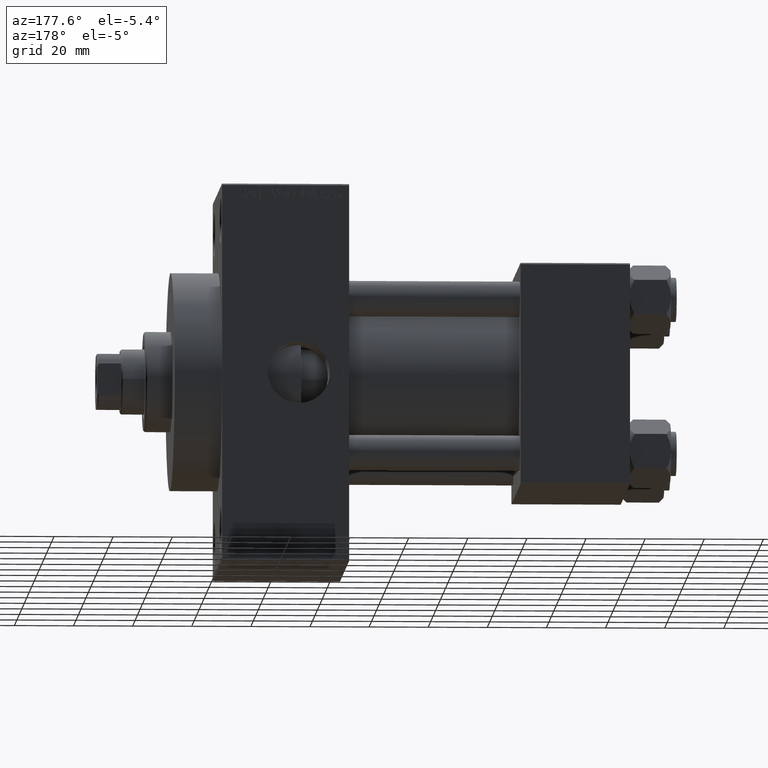
[diagram: clean part render]
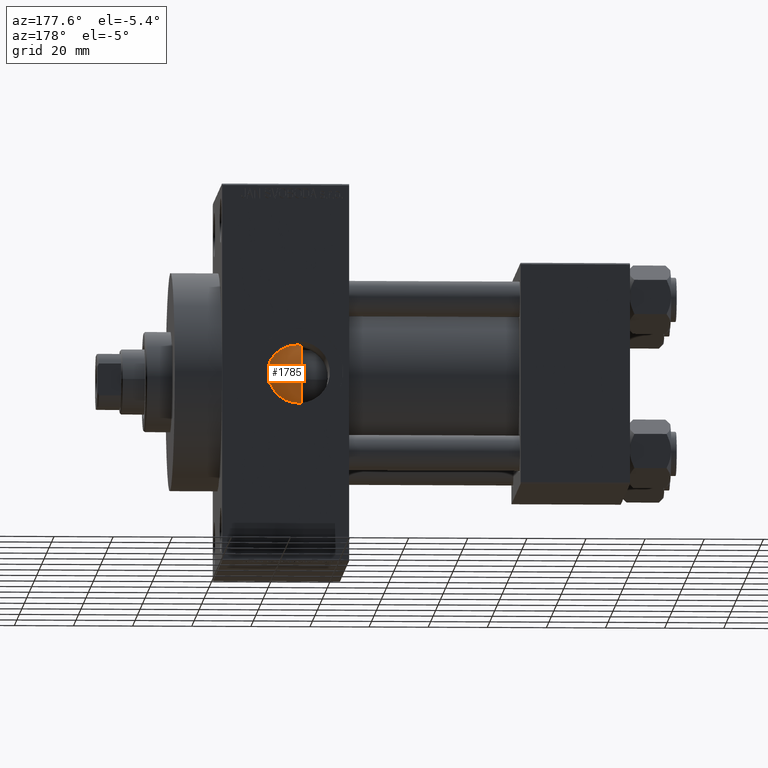
[diagram: same view with one face highlighted and labeled with its STEP entity id]
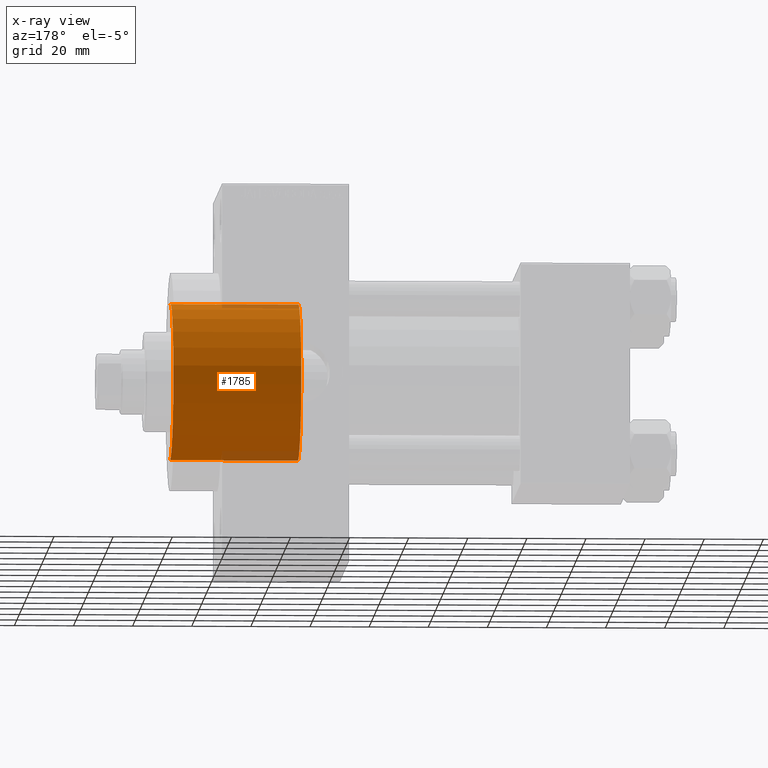
[diagram: x-ray of the same camera — body ghosted, the highlighted face saturated]
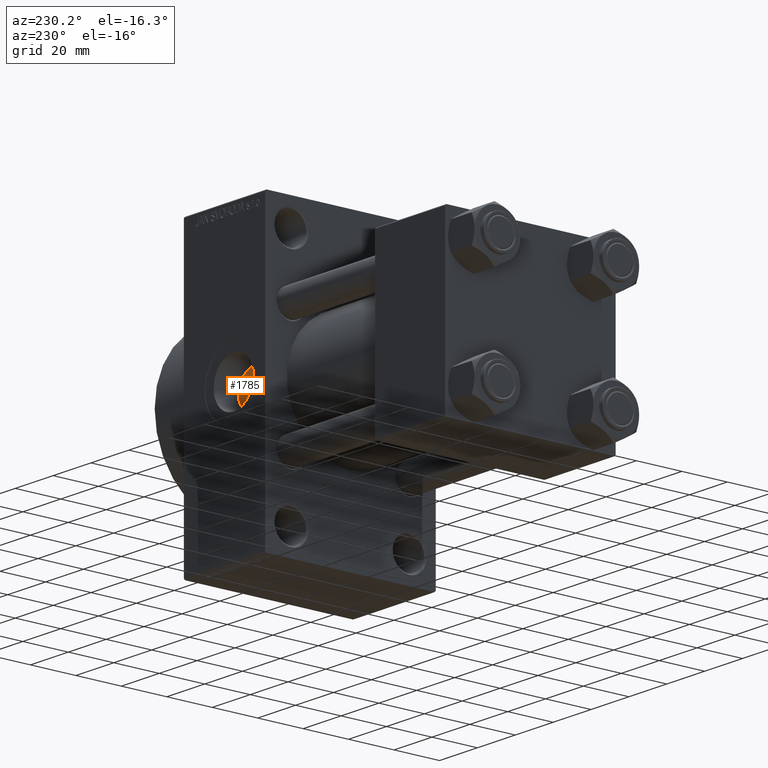
[diagram: same view with one face highlighted and labeled with its STEP entity id]
A machine part, auxiliary view. The second image highlights one B-rep face of the part: STEP entity #1785.
The next image is the same camera in x-ray: the body ghosted, the highlighted face saturated — about 5% of this face is hidden behind the body in this view.
A second angle (auxiliary view) of the same face is appended — the face is thin or edge-on in the first view.
In plain terms, the highlighted cylindrical surface (partial cylindrical patch) has radius 26.5 mm, axis along (-1, -0, 0).
Its self-contained STEP definition (entity closure, byte-faithful):
#831 = EDGE_CURVE ( 'NONE', #40059, #23418, #33774, .T. ) ;
#1619 = AXIS2_PLACEMENT_3D ( 'NONE', #23270, #19576, #38282 ) ;
#1785 = ADVANCED_FACE ( 'NONE', ( #45438 ), #3380, .T. ) ;
#2458 = EDGE_CURVE ( 'NONE', #38193, #25090, #37612, .T. ) ;
#3380 = CYLINDRICAL_SURFACE ( 'NONE', #23639, 26.50000000000000355 ) ;
#3927 = DIRECTION ( 'NONE',  ( -0.000000000000000000, -0.000000000000000000, -1.000000000000000000 ) ) ;
#3970 = ORIENTED_EDGE ( 'NONE', *, *, #32863, .T. ) ;
#4845 = CARTESIAN_POINT ( 'NONE',  ( -26.50000000000000355, 0.000000000000000000, 43.25999999999999801 ) ) ;
#5025 = ORIENTED_EDGE ( 'NONE', *, *, #2458, .T. ) ;
#5543 = VECTOR ( 'NONE', #47849, 1000.000000000000000 ) ;
#7399 = AXIS2_PLACEMENT_3D ( 'NONE', #10155, #47084, #44357 ) ;
#7787 = DIRECTION ( 'NONE',  ( -1.000000000000000000, 0.000000000000000000, 0.000000000000000000 ) ) ;
#9103 = CARTESIAN_POINT ( 'NONE',  ( -26.50000000000000355, 0.000000000000000000, 0.000000000000000000 ) ) ;
#10155 = CARTESIAN_POINT ( 'NONE',  ( 0.000000000000000000, 0.000000000000000000, 43.25999999999999801 ) ) ;
#14246 = VECTOR ( 'NONE', #3927, 1000.000000000000000 ) ;
#18228 = ORIENTED_EDGE ( 'NONE', *, *, #43730, .F. ) ;
#18359 = DIRECTION ( 'NONE',  ( -0.000000000000000000, -0.000000000000000000, -1.000000000000000000 ) ) ;
#19576 = DIRECTION ( 'NONE',  ( 0.000000000000000000, 0.000000000000000000, 1.000000000000000000 ) ) ;
#19713 = ORIENTED_EDGE ( 'NONE', *, *, #831, .F. ) ;
#21029 = CARTESIAN_POINT ( 'NONE',  ( 26.50000000000000355, 3.245314017740486554E-15, 43.25999999999999801 ) ) ;
#23270 = CARTESIAN_POINT ( 'NONE',  ( 0.000000000000000000, 0.000000000000000000, 0.000000000000000000 ) ) ;
#23418 = VERTEX_POINT ( 'NONE', #9103 ) ;
#23639 = AXIS2_PLACEMENT_3D ( 'NONE', #33606, #18359, #7787 ) ;
#25090 = VERTEX_POINT ( 'NONE', #31536 ) ;
#30705 = CARTESIAN_POINT ( 'NONE',  ( 26.50000000000000355, 3.245314017740486554E-15, 43.25999999999999801 ) ) ;
#30903 = CIRCLE ( 'NONE', #7399, 26.50000000000000355 ) ;
#31536 = CARTESIAN_POINT ( 'NONE',  ( 26.50000000000000355, 3.245314017740486554E-15, 0.000000000000000000 ) ) ;
#32863 = EDGE_CURVE ( 'NONE', #25090, #23418, #47203, .T. ) ;
#33288 = CARTESIAN_POINT ( 'NONE',  ( -26.50000000000000355, 0.000000000000000000, 43.25999999999999801 ) ) ;
#33606 = CARTESIAN_POINT ( 'NONE',  ( 0.000000000000000000, 0.000000000000000000, 43.25999999999999801 ) ) ;
#33645 = EDGE_LOOP ( 'NONE', ( #18228, #5025, #3970, #19713 ) ) ;
#33774 = LINE ( 'NONE', #33288, #5543 ) ;
#37612 = LINE ( 'NONE', #30705, #14246 ) ;
#38193 = VERTEX_POINT ( 'NONE', #21029 ) ;
#38282 = DIRECTION ( 'NONE',  ( 1.000000000000000000, 0.000000000000000000, 0.000000000000000000 ) ) ;
#40059 = VERTEX_POINT ( 'NONE', #4845 ) ;
#43730 = EDGE_CURVE ( 'NONE', #38193, #40059, #30903, .T. ) ;
#44357 = DIRECTION ( 'NONE',  ( 1.000000000000000000, 0.000000000000000000, 0.000000000000000000 ) ) ;
#45438 = FACE_OUTER_BOUND ( 'NONE', #33645, .T. ) ;
#47084 = DIRECTION ( 'NONE',  ( 0.000000000000000000, 0.000000000000000000, 1.000000000000000000 ) ) ;
#47203 = CIRCLE ( 'NONE', #1619, 26.50000000000000355 ) ;
#47849 = DIRECTION ( 'NONE',  ( -0.000000000000000000, -0.000000000000000000, -1.000000000000000000 ) ) ;